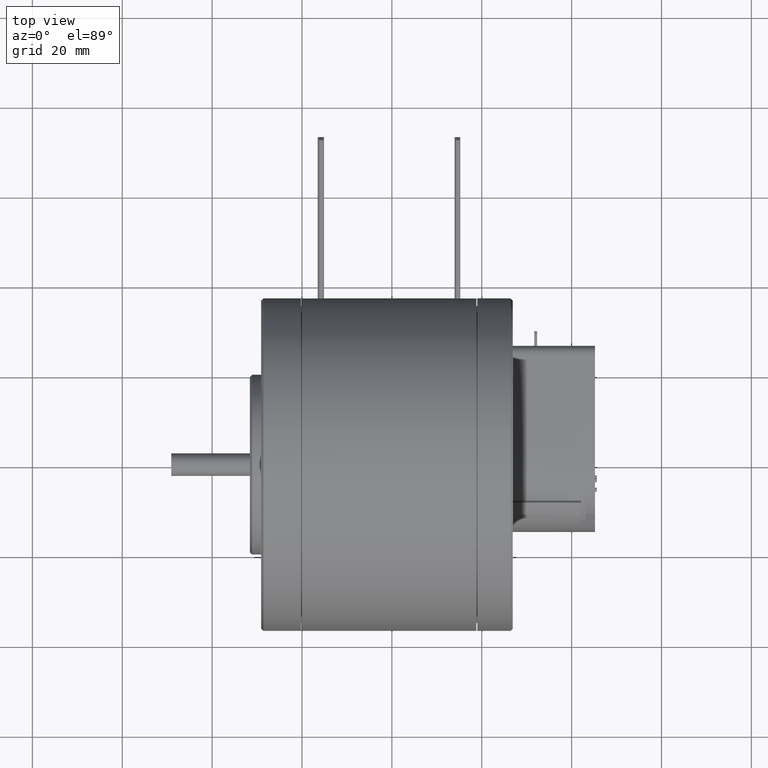
[diagram: clean part render]
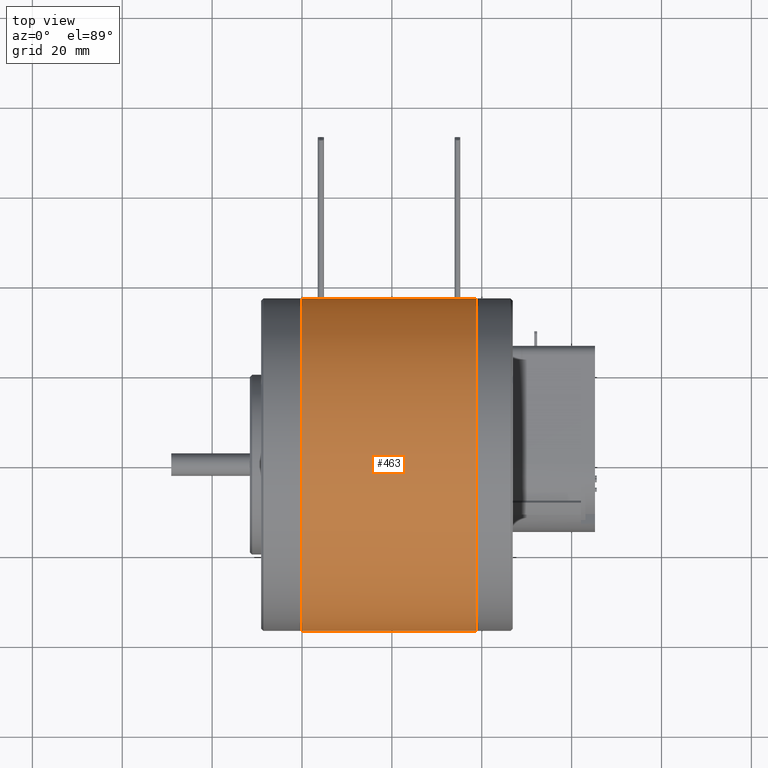
[diagram: same view with one face highlighted and labeled with its STEP entity id]
A machine part, top view. The second image highlights one B-rep face of the part: STEP entity #463.
In plain terms, the highlighted cylindrical surface (partial cylindrical patch) has radius 37 mm, axis along (-1, 0, 0).
Its self-contained STEP definition (entity closure, byte-faithful):
#16=CARTESIAN_POINT('',(0.E0,1.224606353822E-14,0.E0));
#17=DIRECTION('',(1.E0,0.E0,0.E0));
#18=DIRECTION('',(0.E0,9.991778943575E-1,4.054054054054E-2));
#19=AXIS2_PLACEMENT_3D('',#16,#17,#18);
#132=CARTESIAN_POINT('',(3.38E1,0.E0,0.E0));
#133=DIRECTION('',(-1.E0,0.E0,0.E0));
#134=DIRECTION('',(0.E0,9.991778943575E-1,4.054054054054E-2));
#135=AXIS2_PLACEMENT_3D('',#132,#133,#134);
#137=DIRECTION('',(-1.E0,0.E0,0.E0));
#138=VECTOR('',#137,5.E0);
#139=CARTESIAN_POINT('',(3.88E1,3.696958209123E1,1.5E0));
#140=LINE('',#139,#138);
#141=CARTESIAN_POINT('',(3.88E1,0.E0,0.E0));
#142=DIRECTION('',(1.E0,0.E0,0.E0));
#143=DIRECTION('',(0.E0,9.991778943575E-1,4.054054054054E-2));
#144=AXIS2_PLACEMENT_3D('',#141,#142,#143);
#146=DIRECTION('',(-1.E0,0.E0,0.E0));
#147=VECTOR('',#146,3.88E1);
#148=CARTESIAN_POINT('',(3.88E1,-3.7E1,0.E0));
#149=LINE('',#148,#147);
#150=DIRECTION('',(-1.E0,0.E0,0.E0));
#151=VECTOR('',#150,5.E0);
#152=CARTESIAN_POINT('',(5.E0,3.696958209123E1,1.5E0));
#153=LINE('',#152,#151);
#154=CARTESIAN_POINT('',(5.E0,1.163376036131E-14,0.E0));
#155=DIRECTION('',(-1.E0,0.E0,0.E0));
#156=DIRECTION('',(0.E0,9.991778943575E-1,4.054054054054E-2));
#157=AXIS2_PLACEMENT_3D('',#154,#155,#156);
#159=DIRECTION('',(-1.E0,0.E0,0.E0));
#160=VECTOR('',#159,2.88E1);
#161=CARTESIAN_POINT('',(3.38E1,3.7E1,0.E0));
#162=LINE('',#161,#160);
#190=CARTESIAN_POINT('',(3.88E1,-3.7E1,0.E0));
#191=CARTESIAN_POINT('',(-1.421085471520E-14,-3.7E1,0.E0));
#192=VERTEX_POINT('',#190);
#193=VERTEX_POINT('',#191);
#194=CARTESIAN_POINT('',(5.E0,3.7E1,0.E0));
#196=VERTEX_POINT('',#194);
#200=CARTESIAN_POINT('',(5.E0,3.696958209123E1,1.5E0));
#201=VERTEX_POINT('',#200);
#202=CARTESIAN_POINT('',(0.E0,3.696958209123E1,1.5E0));
#203=VERTEX_POINT('',#202);
#204=CARTESIAN_POINT('',(3.38E1,3.7E1,0.E0));
#206=VERTEX_POINT('',#204);
#210=CARTESIAN_POINT('',(3.38E1,3.696958209123E1,1.5E0));
#211=VERTEX_POINT('',#210);
#212=CARTESIAN_POINT('',(3.88E1,3.696958209123E1,1.5E0));
#213=VERTEX_POINT('',#212);
#446=CARTESIAN_POINT('',(4.074E1,0.E0,0.E0));
#447=DIRECTION('',(-1.E0,0.E0,0.E0));
#448=DIRECTION('',(0.E0,1.E0,0.E0));
#449=AXIS2_PLACEMENT_3D('',#446,#447,#448);
#450=CYLINDRICAL_SURFACE('',#449,3.7E1);
#451=ORIENTED_EDGE('',*,*,#395,.F.);
#452=ORIENTED_EDGE('',*,*,#411,.F.);
#453=ORIENTED_EDGE('',*,*,#427,.T.);
#454=ORIENTED_EDGE('',*,*,#378,.T.);
#455=ORIENTED_EDGE('',*,*,#257,.F.);
#457=ORIENTED_EDGE('',*,*,#456,.F.);
#459=ORIENTED_EDGE('',*,*,#458,.T.);
#460=ORIENTED_EDGE('',*,*,#372,.F.);
#461=EDGE_LOOP('',(#451,#452,#453,#454,#455,#457,#459,#460));
#462=FACE_OUTER_BOUND('',#461,.F.);
#463=ADVANCED_FACE('',(#462),#450,.T.);
#20=CIRCLE('',#19,3.7E1);
#136=CIRCLE('',#135,3.7E1);
#145=CIRCLE('',#144,3.7E1);
#158=CIRCLE('',#157,3.7E1);
#257=EDGE_CURVE('',#203,#193,#20,.T.);
#372=EDGE_CURVE('',#206,#196,#162,.T.);
#378=EDGE_CURVE('',#192,#193,#149,.T.);
#395=EDGE_CURVE('',#211,#206,#136,.T.);
#411=EDGE_CURVE('',#213,#211,#140,.T.);
#427=EDGE_CURVE('',#213,#192,#145,.T.);
#456=EDGE_CURVE('',#201,#203,#153,.T.);
#458=EDGE_CURVE('',#201,#196,#158,.T.);